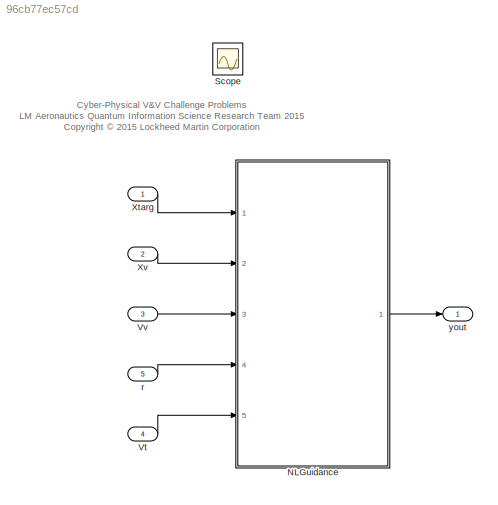
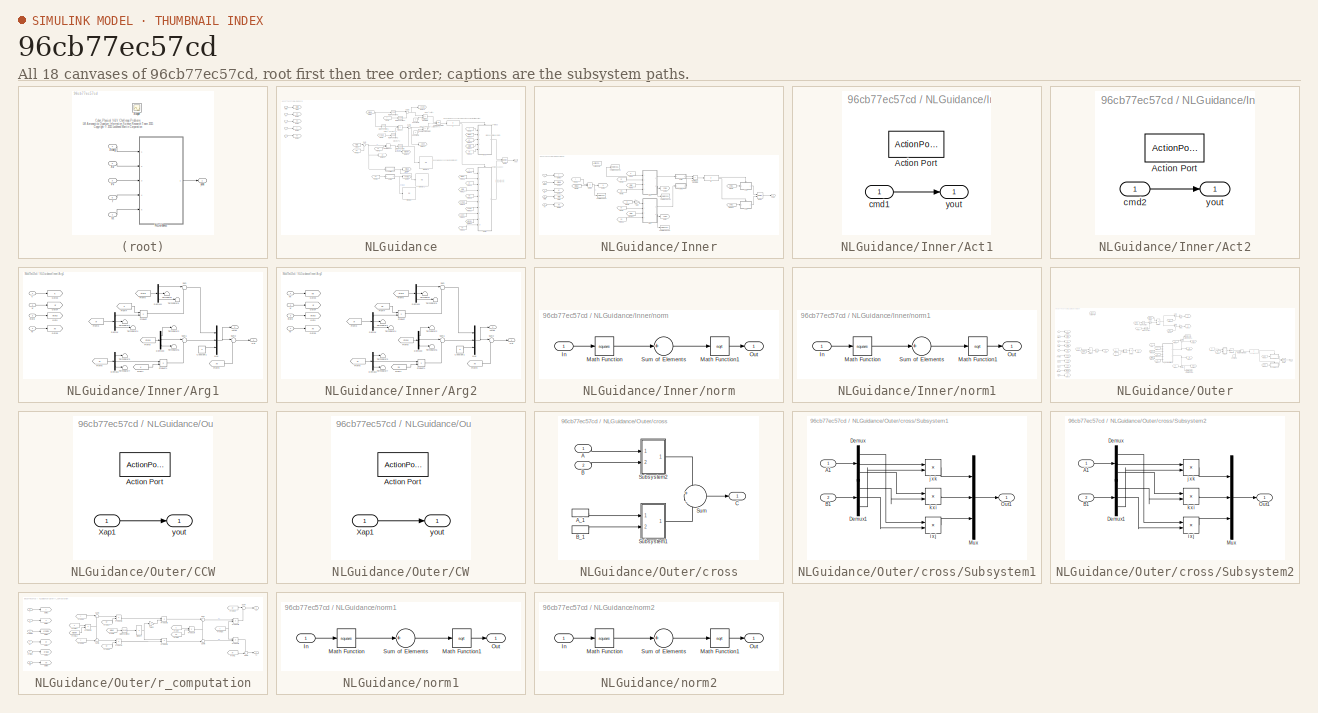
[diagram: thumbnail index - all 18 canvases of the model, root first then tree order]
MODEL slx_96cb77ec57cd
KIND model
CONFIG AbsTol = auto
CONFIG FixedStep = .02
CONFIG MaxStep = auto
CONFIG MinStep = auto
CONFIG RelTol = 1e-3
CONFIG SampleTimeConstraint = Unconstrained
CONFIG Solver = ode3
CONFIG SolverMode = Auto
CONFIG SolverName = ode3
CONFIG StartTime = 0.0
CONFIG StopTime = 10.0
WORKSPACE source: MAT-file member
WORKSPACE F = [0.0104799567177 0.0105274136759 0.00258730184958 0.00112291450915 0.0065543125439 0]
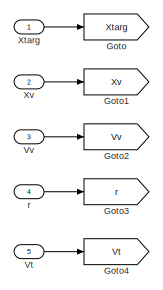
[diagram: NLGuidance - part 1/4, top left region]
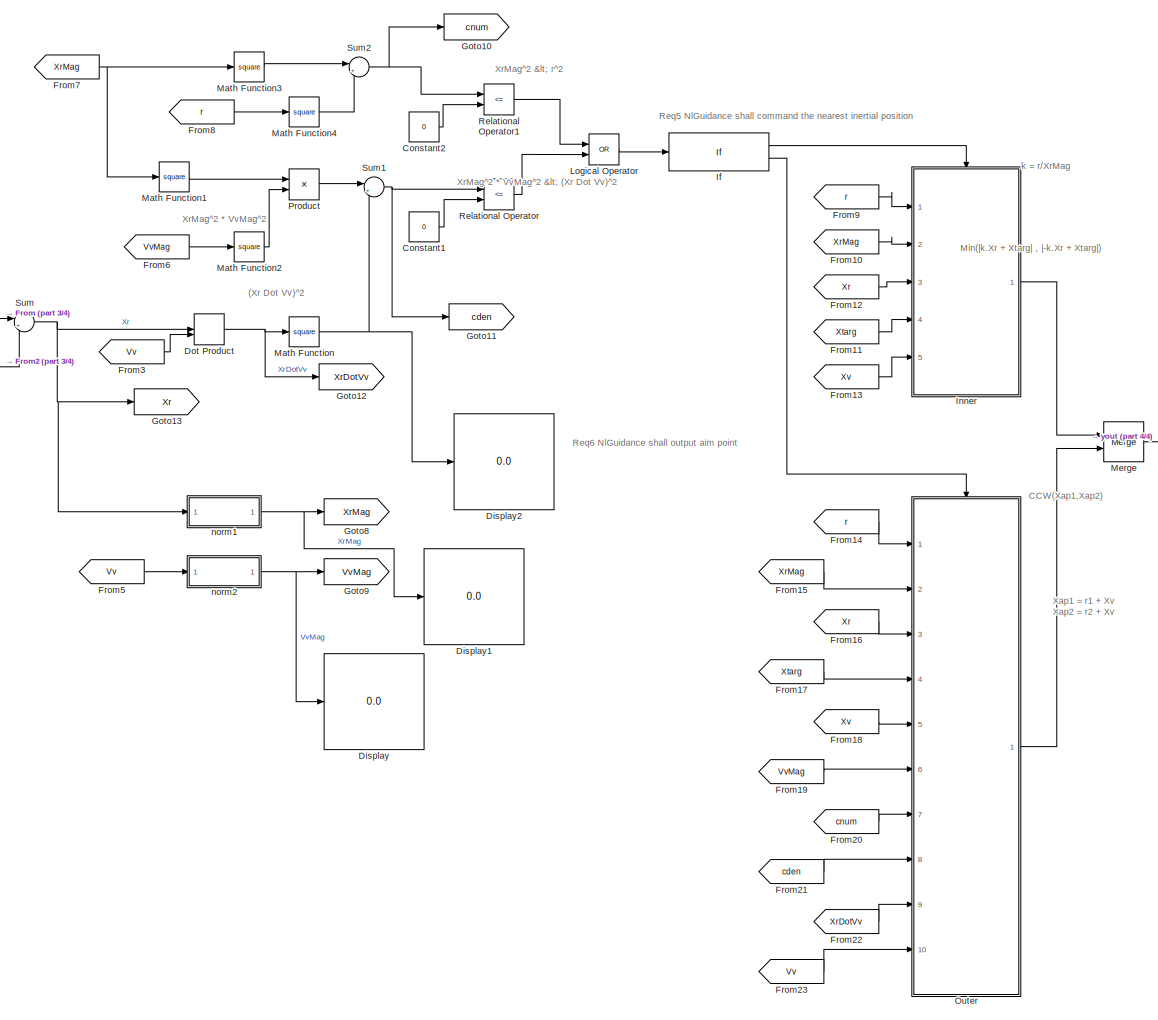
[diagram: NLGuidance - part 2/4, center side, full height]
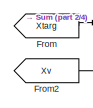
[diagram: NLGuidance - part 3/4, middle left region]
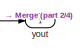
[diagram: NLGuidance - part 4/4, middle right region]
BLOCK [SubSystem] NLGuidance
  Ports = [5, 1]
  RequestExecContextInheritance = off
  Variant = off
BLOCK [Constant] NLGuidance/Constant1
  Value = 0
BLOCK [Constant] NLGuidance/Constant2
  Value = 0
BLOCK [Display] NLGuidance/Display
  Decimation = 1
  Ports = [1]
BLOCK [Display] NLGuidance/Display1
  Decimation = 1
  Ports = [1]
BLOCK [Display] NLGuidance/Display2
  Decimation = 1
  Ports = [1]
BLOCK [DotProduct] NLGuidance/Dot Product
  OutDataTypeStr = Inherit: Inherit via internal rule
BLOCK [From] NLGuidance/From
  GotoTag = Xtarg
BLOCK [From] NLGuidance/From10
  GotoTag = XrMag
BLOCK [From] NLGuidance/From11
  GotoTag = Xtarg
BLOCK [From] NLGuidance/From12
  GotoTag = Xr
BLOCK [From] NLGuidance/From13
  GotoTag = Xv
BLOCK [From] NLGuidance/From14
  GotoTag = r
BLOCK [From] NLGuidance/From15
  GotoTag = XrMag
BLOCK [From] NLGuidance/From16
  GotoTag = Xr
BLOCK [From] NLGuidance/From17
  GotoTag = Xtarg
BLOCK [From] NLGuidance/From18
  GotoTag = Xv
BLOCK [From] NLGuidance/From19
  GotoTag = VvMag
BLOCK [From] NLGuidance/From2
  GotoTag = Xv
BLOCK [From] NLGuidance/From20
  GotoTag = cnum
BLOCK [From] NLGuidance/From21
  GotoTag = cden
BLOCK [From] NLGuidance/From22
  GotoTag = XrDotVv
BLOCK [From] NLGuidance/From23
  GotoTag = Vv
BLOCK [From] NLGuidance/From3
  GotoTag = Vv
BLOCK [From] NLGuidance/From5
  GotoTag = Vv
BLOCK [From] NLGuidance/From6
  GotoTag = VvMag
BLOCK [From] NLGuidance/From7
  GotoTag = XrMag
BLOCK [From] NLGuidance/From8
  GotoTag = r
BLOCK [From] NLGuidance/From9
  GotoTag = r
BLOCK [Goto] NLGuidance/Goto
  GotoTag = Xtarg
BLOCK [Goto] NLGuidance/Goto1
  GotoTag = Xv
BLOCK [Goto] NLGuidance/Goto10
  GotoTag = cnum
BLOCK [Goto] NLGuidance/Goto11
  GotoTag = cden
BLOCK [Goto] NLGuidance/Goto12
  GotoTag = XrDotVv
BLOCK [Goto] NLGuidance/Goto13
  GotoTag = Xr
BLOCK [Goto] NLGuidance/Goto2
  GotoTag = Vv
BLOCK [Goto] NLGuidance/Goto3
  GotoTag = r
BLOCK [Goto] NLGuidance/Goto4
  GotoTag = Vt
BLOCK [Goto] NLGuidance/Goto8
  GotoTag = XrMag
BLOCK [Goto] NLGuidance/Goto9
  GotoTag = VvMag
BLOCK [If] NLGuidance/If
  IfExpression = u1
  Ports = [1, 2]
BLOCK [SubSystem] NLGuidance/Inner
  Ports = [5, 1, 0, 0, 0, 0, 0, 1]
  RequestExecContextInheritance = off
  Variant = off
BLOCK [SubSystem] NLGuidance/Inner/Act1
  Ports = [1, 1, 0, 0, 0, 0, 0, 1]
  RequestExecContextInheritance = off
  Variant = off
BLOCK [ActionPort] NLGuidance/Inner/Act1/Action Port
  ActionType = then
BLOCK [Inport] NLGuidance/Inner/Act1/cmd1
  IconDisplay = Port number
BLOCK [Outport] NLGuidance/Inner/Act1/yout
  IconDisplay = Port number
BLOCK [SubSystem] NLGuidance/Inner/Act2
  Ports = [1, 1, 0, 0, 0, 0, 0, 1]
  RequestExecContextInheritance = off
  Variant = off
BLOCK [ActionPort] NLGuidance/Inner/Act2/Action Port
  ActionType = else
BLOCK [Inport] NLGuidance/Inner/Act2/cmd2
  IconDisplay = Port number
BLOCK [Outport] NLGuidance/Inner/Act2/yout
  IconDisplay = Port number
BLOCK [ActionPort] NLGuidance/Inner/Action Port
  ActionType = then
BLOCK [SubSystem] NLGuidance/Inner/Arg1
  Ports = [4, 2]
  RequestExecContextInheritance = off
  Variant = off
BLOCK [Constant] NLGuidance/Inner/Arg1/Constant1
  Value = 0
BLOCK [Demux] NLGuidance/Inner/Arg1/Demux
  DisplayOption = bar
  Outputs = 3
  Ports = [1, 3]
BLOCK [Demux] NLGuidance/Inner/Arg1/Demux1
  DisplayOption = bar
  Outputs = 3
  Ports = [1, 3]
BLOCK [Demux] NLGuidance/Inner/Arg1/Demux2
  DisplayOption = bar
  Outputs = 3
  Ports = [1, 3]
BLOCK [Demux] NLGuidance/Inner/Arg1/Demux3
  DisplayOption = bar
  Outputs = 3
  Ports = [1, 3]
BLOCK [From] NLGuidance/Inner/Arg1/From3
  GotoTag = Xr
BLOCK [From] NLGuidance/Inner/Arg1/From4
  GotoTag = k
BLOCK [From] NLGuidance/Inner/Arg1/From5
  GotoTag = Xtarg
BLOCK [From] NLGuidance/Inner/Arg1/From6
  GotoTag = Xr
BLOCK [From] NLGuidance/Inner/Arg1/From7
  GotoTag = k
BLOCK [From] NLGuidance/Inner/Arg1/From8
  GotoTag = Xtarg
BLOCK [From] NLGuidance/Inner/Arg1/From9
  GotoTag = Xv
BLOCK [Goto] NLGuidance/Inner/Arg1/Goto
  GotoTag = Xtarg
BLOCK [Goto] NLGuidance/Inner/Arg1/Goto3
  GotoTag = k
BLOCK [Goto] NLGuidance/Inner/Arg1/Goto4
  GotoTag = Xr
BLOCK [Goto] NLGuidance/Inner/Arg1/Goto5
  GotoTag = Xv
BLOCK [Mux] NLGuidance/Inner/Arg1/Mux
  DisplayOption = bar
  Inputs = 3
  Ports = [3, 1]
BLOCK [Outport] NLGuidance/Inner/Arg1/Out
  IconDisplay = Port number
BLOCK [Product] NLGuidance/Inner/Arg1/Product
  InputSameDT = off
  OutDataTypeStr = Inherit: Inherit via internal rule
  Ports = [2, 1]
  SaturateOnIntegerOverflow = off
BLOCK [Product] NLGuidance/Inner/Arg1/Product1
  InputSameDT = off
  OutDataTypeStr = Inherit: Inherit via internal rule
  Ports = [2, 1]
  SaturateOnIntegerOverflow = off
BLOCK [Sum] NLGuidance/Inner/Arg1/Sum
  IconShape = round
  InputSameDT = off
  Inputs = |++
  OutDataTypeStr = Inherit: Inherit via internal rule
  Ports = [2, 1]
  SaturateOnIntegerOverflow = off
BLOCK [Sum] NLGuidance/Inner/Arg1/Sum1
  IconShape = round
  InputSameDT = off
  Inputs = |++
  OutDataTypeStr = Inherit: Inherit via internal rule
  Ports = [2, 1]
  SaturateOnIntegerOverflow = off
BLOCK [Sum] NLGuidance/Inner/Arg1/Sum2
  IconShape = round
  InputSameDT = off
  Inputs = |+-
  OutDataTypeStr = Inherit: Inherit via internal rule
  Ports = [2, 1]
  SaturateOnIntegerOverflow = off
BLOCK [Terminator] NLGuidance/Inner/Arg1/Terminator
BLOCK [Terminator] NLGuidance/Inner/Arg1/Terminator1
BLOCK [Terminator] NLGuidance/Inner/Arg1/Terminator2
BLOCK [Terminator] NLGuidance/Inner/Arg1/Terminator3
BLOCK [Terminator] NLGuidance/Inner/Arg1/Terminator4
BLOCK [Terminator] NLGuidance/Inner/Arg1/Terminator5
BLOCK [Terminator] NLGuidance/Inner/Arg1/Terminator6
BLOCK [Terminator] NLGuidance/Inner/Arg1/Terminator7
BLOCK [Inport] NLGuidance/Inner/Arg1/Xr
  IconDisplay = Port number
  Port = 2
BLOCK [Inport] NLGuidance/Inner/Arg1/Xtarg
  IconDisplay = Port number
  Port = 3
BLOCK [Inport] NLGuidance/Inner/Arg1/Xv
  IconDisplay = Port number
  Port = 4
BLOCK [Outport] NLGuidance/Inner/Arg1/cmd1
  IconDisplay = Port number
  Port = 2
BLOCK [Inport] NLGuidance/Inner/Arg1/k
  IconDisplay = Port number
BLOCK [SubSystem] NLGuidance/Inner/Arg2
  Ports = [4, 2]
  RequestExecContextInheritance = off
  Variant = off
BLOCK [Constant] NLGuidance/Inner/Arg2/Constant1
  Value = 0
BLOCK [Demux] NLGuidance/Inner/Arg2/Demux
  DisplayOption = bar
  Outputs = 3
  Ports = [1, 3]
BLOCK [Demux] NLGuidance/Inner/Arg2/Demux1
  DisplayOption = bar
  Outputs = 3
  Ports = [1, 3]
BLOCK [Demux] NLGuidance/Inner/Arg2/Demux2
  DisplayOption = bar
  Outputs = 3
  Ports = [1, 3]
BLOCK [Demux] NLGuidance/Inner/Arg2/Demux3
  DisplayOption = bar
  Outputs = 3
  Ports = [1, 3]
BLOCK [From] NLGuidance/Inner/Arg2/From3
  GotoTag = Xr
BLOCK [From] NLGuidance/Inner/Arg2/From4
  GotoTag = nk
BLOCK [From] NLGuidance/Inner/Arg2/From5
  GotoTag = Xtarg
BLOCK [From] NLGuidance/Inner/Arg2/From6
  GotoTag = Xr
BLOCK [From] NLGuidance/Inner/Arg2/From7
  GotoTag = nk
BLOCK [From] NLGuidance/Inner/Arg2/From8
  GotoTag = Xtarg
BLOCK [From] NLGuidance/Inner/Arg2/From9
  GotoTag = Xv
BLOCK [Goto] NLGuidance/Inner/Arg2/Goto
  GotoTag = Xtarg
BLOCK [Goto] NLGuidance/Inner/Arg2/Goto3
  GotoTag = nk
BLOCK [Goto] NLGuidance/Inner/Arg2/Goto4
  GotoTag = Xr
BLOCK [Goto] NLGuidance/Inner/Arg2/Goto5
  GotoTag = Xv
BLOCK [Mux] NLGuidance/Inner/Arg2/Mux
  DisplayOption = bar
  Inputs = 3
  Ports = [3, 1]
BLOCK [Outport] NLGuidance/Inner/Arg2/Out
  IconDisplay = Port number
BLOCK [Product] NLGuidance/Inner/Arg2/Product
  InputSameDT = off
  OutDataTypeStr = Inherit: Inherit via internal rule
  Ports = [2, 1]
  SaturateOnIntegerOverflow = off
BLOCK [Product] NLGuidance/Inner/Arg2/Product1
  InputSameDT = off
  OutDataTypeStr = Inherit: Inherit via internal rule
  Ports = [2, 1]
  SaturateOnIntegerOverflow = off
BLOCK [Sum] NLGuidance/Inner/Arg2/Sum
  IconShape = round
  InputSameDT = off
  Inputs = |++
  OutDataTypeStr = Inherit: Inherit via internal rule
  Ports = [2, 1]
  SaturateOnIntegerOverflow = off
BLOCK [Sum] NLGuidance/Inner/Arg2/Sum1
  IconShape = round
  InputSameDT = off
  Inputs = |++
  OutDataTypeStr = Inherit: Inherit via internal rule
  Ports = [2, 1]
  SaturateOnIntegerOverflow = off
BLOCK [Sum] NLGuidance/Inner/Arg2/Sum2
  IconShape = round
  InputSameDT = off
  Inputs = |+-
  OutDataTypeStr = Inherit: Inherit via internal rule
  Ports = [2, 1]
  SaturateOnIntegerOverflow = off
BLOCK [Terminator] NLGuidance/Inner/Arg2/Terminator
BLOCK [Terminator] NLGuidance/Inner/Arg2/Terminator1
BLOCK [Terminator] NLGuidance/Inner/Arg2/Terminator2
BLOCK [Terminator] NLGuidance/Inner/Arg2/Terminator3
BLOCK [Terminator] NLGuidance/Inner/Arg2/Terminator4
BLOCK [Terminator] NLGuidance/Inner/Arg2/Terminator5
BLOCK [Terminator] NLGuidance/Inner/Arg2/Terminator6
BLOCK [Terminator] NLGuidance/Inner/Arg2/Terminator7
BLOCK [Inport] NLGuidance/Inner/Arg2/Xr
  IconDisplay = Port number
  Port = 2
BLOCK [Inport] NLGuidance/Inner/Arg2/Xtarg
  IconDisplay = Port number
  Port = 3
BLOCK [Inport] NLGuidance/Inner/Arg2/Xv
  IconDisplay = Port number
  Port = 4
BLOCK [Outport] NLGuidance/Inner/Arg2/cmd2
  IconDisplay = Port number
  Port = 2
BLOCK [Inport] NLGuidance/Inner/Arg2/nk
  IconDisplay = Port number
BLOCK [Product] NLGuidance/Inner/Divide
  InputSameDT = off
  Inputs = */
  OutDataTypeStr = Inherit: Inherit via internal rule
  Ports = [2, 1]
  RndMeth = Floor
  SaturateOnIntegerOverflow = off
BLOCK [From] NLGuidance/Inner/From1
  GotoTag = r
BLOCK [From] NLGuidance/Inner/From10
  GotoTag = Xtarg
BLOCK [From] NLGuidance/Inner/From11
  GotoTag = Xv
BLOCK [From] NLGuidance/Inner/From12
  GotoTag = cmd2
BLOCK [From] NLGuidance/Inner/From2
  GotoTag = XrMag
BLOCK [From] NLGuidance/Inner/From3
  GotoTag = Xr
BLOCK [From] NLGuidance/Inner/From4
  GotoTag = k
BLOCK [From] NLGuidance/Inner/From5
  GotoTag = Xtarg
BLOCK [From] NLGuidance/Inner/From6
  GotoTag = Xv
BLOCK [From] NLGuidance/Inner/From7
  GotoTag = Xr
BLOCK [From] NLGuidance/Inner/From8
  GotoTag = k
BLOCK [From] NLGuidance/Inner/From9
  GotoTag = cmd1
BLOCK [Gain] NLGuidance/Inner/Gain
  Gain = -1
  OutDataTypeStr = Inherit: Inherit via internal rule
  ParamDataTypeStr = Inherit: Inherit via internal rule
  SaturateOnIntegerOverflow = off
BLOCK [Goto] NLGuidance/Inner/Goto
  GotoTag = Xtarg
BLOCK [Goto] NLGuidance/Inner/Goto1
  GotoTag = XrMag
BLOCK [Goto] NLGuidance/Inner/Goto2
  GotoTag = k
BLOCK [Goto] NLGuidance/Inner/Goto3
  GotoTag = r
BLOCK [Goto] NLGuidance/Inner/Goto4
  GotoTag = Xr
BLOCK [Goto] NLGuidance/Inner/Goto5
  GotoTag = Xv
BLOCK [Goto] NLGuidance/Inner/Goto6
  GotoTag = cmd1
BLOCK [Goto] NLGuidance/Inner/Goto7
  GotoTag = cmd2
BLOCK [If] NLGuidance/Inner/If
  IfExpression = u1
  Ports = [1, 2]
BLOCK [Merge] NLGuidance/Inner/Merge
  Ports = [2, 1]
BLOCK [RelationalOperator] NLGuidance/Inner/Relational Operator1
  InputSameDT = off
  Operator = <
  OutDataTypeStr = boolean
  Ports = [2, 1]
BLOCK [ToWorkspace] NLGuidance/Inner/To Workspace
  FixptAsFi = on
  MaxDataPoints = inf
  Ports = [1]
  SampleTime = -1
  Save2DSignal = 3-D array (concatenate along third dimension)
  SaveFormat = Timeseries
  VariableName = k
BLOCK [ToWorkspace] NLGuidance/Inner/To Workspace1
  FixptAsFi = on
  MaxDataPoints = inf
  Ports = [1]
  SampleTime = -1
  Save2DSignal = 3-D array (concatenate along third dimension)
  VariableName = cmd1
BLOCK [ToWorkspace] NLGuidance/Inner/To Workspace2
  FixptAsFi = on
  MaxDataPoints = inf
  Ports = [1]
  SampleTime = -1
  Save2DSignal = 3-D array (concatenate along third dimension)
  VariableName = cmd2
BLOCK [ToWorkspace] NLGuidance/Inner/To Workspace3
  FixptAsFi = on
  MaxDataPoints = inf
  Ports = [1]
  SampleTime = -1
  Save2DSignal = 3-D array (concatenate along third dimension)
  SaveFormat = Timeseries
  VariableName = Xr
BLOCK [Inport] NLGuidance/Inner/Xr
  IconDisplay = Port number
  Port = 3
BLOCK [Inport] NLGuidance/Inner/XrMag
  IconDisplay = Port number
  Port = 2
BLOCK [Inport] NLGuidance/Inner/Xtarg
  IconDisplay = Port number
  Port = 4
BLOCK [Inport] NLGuidance/Inner/Xv
  IconDisplay = Port number
  Port = 5
BLOCK [SubSystem] NLGuidance/Inner/norm
  Ports = [1, 1]
  RequestExecContextInheritance = off
  Variant = off
BLOCK [Inport] NLGuidance/Inner/norm/In
  IconDisplay = Port number
BLOCK [Math] NLGuidance/Inner/norm/Math Function
  Operator = square
  Ports = [1, 1]
BLOCK [Math] NLGuidance/Inner/norm/Math Function1
  Operator = sqrt
  Ports = [1, 1]
BLOCK [Outport] NLGuidance/Inner/norm/Out
  IconDisplay = Port number
BLOCK [Sum] NLGuidance/Inner/norm/Sum of Elements
  InputSameDT = off
  Inputs = +
  OutDataTypeStr = Inherit: Inherit via internal rule
  Ports = [1, 1]
  SaturateOnIntegerOverflow = off
BLOCK [SubSystem] NLGuidance/Inner/norm1
  Ports = [1, 1]
  RequestExecContextInheritance = off
  Variant = off
BLOCK [Inport] NLGuidance/Inner/norm1/In
  IconDisplay = Port number
BLOCK [Math] NLGuidance/Inner/norm1/Math Function
  Operator = square
  Ports = [1, 1]
BLOCK [Math] NLGuidance/Inner/norm1/Math Function1
  Operator = sqrt
  Ports = [1, 1]
BLOCK [Outport] NLGuidance/Inner/norm1/Out
  IconDisplay = Port number
BLOCK [Sum] NLGuidance/Inner/norm1/Sum of Elements
  InputSameDT = off
  Inputs = +
  OutDataTypeStr = Inherit: Inherit via internal rule
  Ports = [1, 1]
  SaturateOnIntegerOverflow = off
BLOCK [Inport] NLGuidance/Inner/r
  IconDisplay = Port number
BLOCK [Outport] NLGuidance/Inner/yout
  IconDisplay = Port number
BLOCK [Logic] NLGuidance/Logical Operator
  AllPortsSameDT = off
  Operator = OR
  OutDataTypeStr = boolean
  Ports = [2, 1]
BLOCK [Math] NLGuidance/Math Function
  Operator = square
  Ports = [1, 1]
BLOCK [Math] NLGuidance/Math Function1
  Operator = square
  Ports = [1, 1]
BLOCK [Math] NLGuidance/Math Function2
  Operator = square
  Ports = [1, 1]
BLOCK [Math] NLGuidance/Math Function3
  Operator = square
  Ports = [1, 1]
BLOCK [Math] NLGuidance/Math Function4
  Operator = square
  Ports = [1, 1]
BLOCK [Merge] NLGuidance/Merge
  Ports = [2, 1]
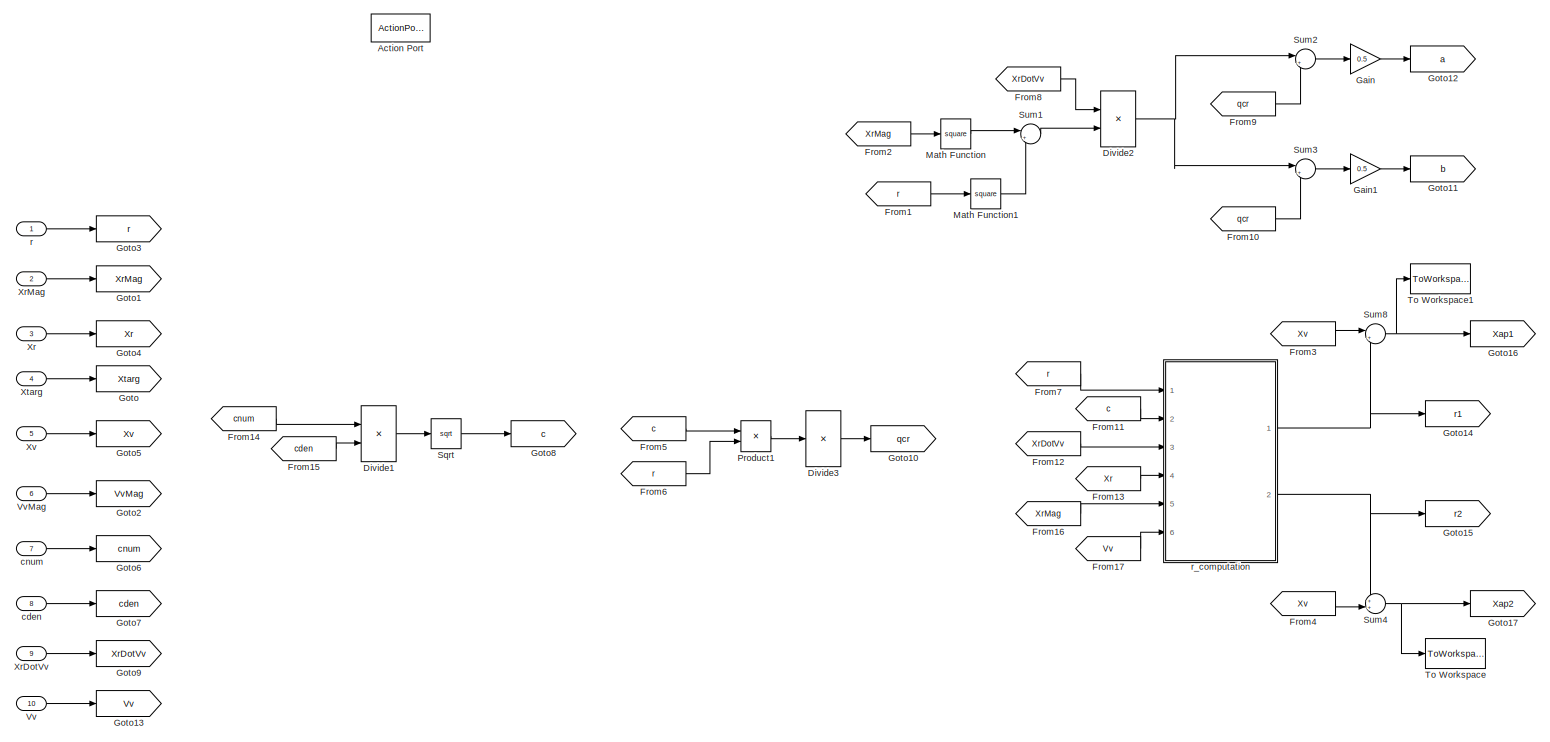
[diagram: NLGuidance/Outer - part 1/2, left side, full height]
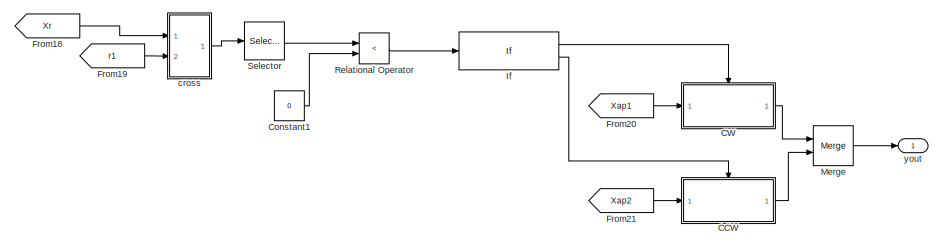
[diagram: NLGuidance/Outer - part 2/2, bottom right region]
BLOCK [SubSystem] NLGuidance/Outer
  Ports = [10, 1, 0, 0, 0, 0, 0, 1]
  RequestExecContextInheritance = off
  Variant = off
BLOCK [ActionPort] NLGuidance/Outer/Action Port
  ActionType = else
BLOCK [SubSystem] NLGuidance/Outer/CCW
  Ports = [1, 1, 0, 0, 0, 0, 0, 1]
  RequestExecContextInheritance = off
  Variant = off
BLOCK [ActionPort] NLGuidance/Outer/CCW/Action Port
  ActionType = else
BLOCK [Inport] NLGuidance/Outer/CCW/Xap1
  IconDisplay = Port number
BLOCK [Outport] NLGuidance/Outer/CCW/yout
  IconDisplay = Port number
BLOCK [SubSystem] NLGuidance/Outer/CW
  Ports = [1, 1, 0, 0, 0, 0, 0, 1]
  RequestExecContextInheritance = off
  Variant = off
BLOCK [ActionPort] NLGuidance/Outer/CW/Action Port
  ActionType = then
BLOCK [Inport] NLGuidance/Outer/CW/Xap1
  IconDisplay = Port number
BLOCK [Outport] NLGuidance/Outer/CW/yout
  IconDisplay = Port number
BLOCK [Constant] NLGuidance/Outer/Constant1
  Value = 0
BLOCK [Product] NLGuidance/Outer/Divide1
  InputSameDT = off
  Inputs = */
  OutDataTypeStr = Inherit: Inherit via internal rule
  Ports = [2, 1]
  RndMeth = Floor
  SaturateOnIntegerOverflow = off
BLOCK [Product] NLGuidance/Outer/Divide2
  InputSameDT = off
  Inputs = */
  OutDataTypeStr = Inherit: Inherit via internal rule
  Ports = [2, 1]
  RndMeth = Floor
  SaturateOnIntegerOverflow = off
BLOCK [Product] NLGuidance/Outer/Divide3
  InputSameDT = off
  Inputs = /
  OutDataTypeStr = Inherit: Inherit via internal rule
  Ports = [1, 1]
  RndMeth = Floor
  SaturateOnIntegerOverflow = off
BLOCK [From] NLGuidance/Outer/From1
  GotoTag = r
BLOCK [From] NLGuidance/Outer/From10
  GotoTag = qcr
BLOCK [From] NLGuidance/Outer/From11
  GotoTag = c
BLOCK [From] NLGuidance/Outer/From12
  GotoTag = XrDotVv
BLOCK [From] NLGuidance/Outer/From13
  GotoTag = Xr
BLOCK [From] NLGuidance/Outer/From14
  GotoTag = cnum
BLOCK [From] NLGuidance/Outer/From15
  GotoTag = cden
BLOCK [From] NLGuidance/Outer/From16
  GotoTag = XrMag
BLOCK [From] NLGuidance/Outer/From17
  GotoTag = Vv
BLOCK [From] NLGuidance/Outer/From18
  GotoTag = Xr
BLOCK [From] NLGuidance/Outer/From19
  GotoTag = r1
BLOCK [From] NLGuidance/Outer/From2
  GotoTag = XrMag
BLOCK [From] NLGuidance/Outer/From20
  GotoTag = Xap1
BLOCK [From] NLGuidance/Outer/From21
  GotoTag = Xap2
BLOCK [From] NLGuidance/Outer/From3
  GotoTag = Xv
BLOCK [From] NLGuidance/Outer/From4
  GotoTag = Xv
BLOCK [From] NLGuidance/Outer/From5
  GotoTag = c
BLOCK [From] NLGuidance/Outer/From6
  GotoTag = r
BLOCK [From] NLGuidance/Outer/From7
  GotoTag = r
BLOCK [From] NLGuidance/Outer/From8
  GotoTag = XrDotVv
BLOCK [From] NLGuidance/Outer/From9
  GotoTag = qcr
BLOCK [Gain] NLGuidance/Outer/Gain
  Gain = 0.5
  OutDataTypeStr = Inherit: Inherit via internal rule
  ParamDataTypeStr = Inherit: Inherit via internal rule
  SaturateOnIntegerOverflow = off
BLOCK [Gain] NLGuidance/Outer/Gain1
  Gain = 0.5
  OutDataTypeStr = Inherit: Inherit via internal rule
  ParamDataTypeStr = Inherit: Inherit via internal rule
  SaturateOnIntegerOverflow = off
BLOCK [Goto] NLGuidance/Outer/Goto
  GotoTag = Xtarg
BLOCK [Goto] NLGuidance/Outer/Goto1
  GotoTag = XrMag
BLOCK [Goto] NLGuidance/Outer/Goto10
  GotoTag = qcr
BLOCK [Goto] NLGuidance/Outer/Goto11
  GotoTag = b
BLOCK [Goto] NLGuidance/Outer/Goto12
  GotoTag = a
BLOCK [Goto] NLGuidance/Outer/Goto13
  GotoTag = Vv
BLOCK [Goto] NLGuidance/Outer/Goto14
  GotoTag = r1
BLOCK [Goto] NLGuidance/Outer/Goto15
  GotoTag = r2
BLOCK [Goto] NLGuidance/Outer/Goto16
  GotoTag = Xap1
BLOCK [Goto] NLGuidance/Outer/Goto17
  GotoTag = Xap2
BLOCK [Goto] NLGuidance/Outer/Goto2
  GotoTag = VvMag
BLOCK [Goto] NLGuidance/Outer/Goto3
  GotoTag = r
BLOCK [Goto] NLGuidance/Outer/Goto4
  GotoTag = Xr
BLOCK [Goto] NLGuidance/Outer/Goto5
  GotoTag = Xv
BLOCK [Goto] NLGuidance/Outer/Goto6
  GotoTag = cnum
BLOCK [Goto] NLGuidance/Outer/Goto7
  GotoTag = cden
BLOCK [Goto] NLGuidance/Outer/Goto8
  GotoTag = c
BLOCK [Goto] NLGuidance/Outer/Goto9
  GotoTag = XrDotVv
BLOCK [If] NLGuidance/Outer/If
  IfExpression = u1
  Ports = [1, 2]
BLOCK [Math] NLGuidance/Outer/Math Function
  Operator = square
  Ports = [1, 1]
BLOCK [Math] NLGuidance/Outer/Math Function1
  Operator = square
  Ports = [1, 1]
BLOCK [Merge] NLGuidance/Outer/Merge
  Ports = [2, 1]
BLOCK [Product] NLGuidance/Outer/Product1
  InputSameDT = off
  OutDataTypeStr = Inherit: Inherit via internal rule
  Ports = [2, 1]
  RndMeth = Floor
  SaturateOnIntegerOverflow = off
BLOCK [RelationalOperator] NLGuidance/Outer/Relational Operator
  InputSameDT = off
  Operator = <
  OutDataTypeStr = boolean
  Ports = [2, 1]
BLOCK [Selector] NLGuidance/Outer/Selector
  IndexOptions = Index vector (dialog)
  Indices = [3]
  InputPortWidth = 3
  OutputSizes = 1
  Ports = [1, 1]
BLOCK [Sqrt] NLGuidance/Outer/Sqrt
BLOCK [Sum] NLGuidance/Outer/Sum1
  IconShape = round
  InputSameDT = off
  Inputs = |+-
  OutDataTypeStr = Inherit: Inherit via internal rule
  Ports = [2, 1]
  SaturateOnIntegerOverflow = off
BLOCK [Sum] NLGuidance/Outer/Sum2
  IconShape = round
  InputSameDT = off
  Inputs = |++
  OutDataTypeStr = Inherit: Inherit via internal rule
  Ports = [2, 1]
  SaturateOnIntegerOverflow = off
BLOCK [Sum] NLGuidance/Outer/Sum3
  IconShape = round
  InputSameDT = off
  Inputs = |+-
  OutDataTypeStr = Inherit: Inherit via internal rule
  Ports = [2, 1]
  SaturateOnIntegerOverflow = off
BLOCK [Sum] NLGuidance/Outer/Sum4
  IconShape = round
  InputSameDT = off
  Inputs = ++|
  OutDataTypeStr = Inherit: Inherit via internal rule
  Ports = [2, 1]
  SaturateOnIntegerOverflow = off
BLOCK [Sum] NLGuidance/Outer/Sum8
  IconShape = round
  InputSameDT = off
  Inputs = |++
  OutDataTypeStr = Inherit: Inherit via internal rule
  Ports = [2, 1]
  SaturateOnIntegerOverflow = off
BLOCK [ToWorkspace] NLGuidance/Outer/To Workspace
  FixptAsFi = on
  MaxDataPoints = inf
  Ports = [1]
  SampleTime = -1
  Save2DSignal = 3-D array (concatenate along third dimension)
  VariableName = Xap2
BLOCK [ToWorkspace] NLGuidance/Outer/To Workspace1
  FixptAsFi = on
  MaxDataPoints = inf
  Ports = [1]
  SampleTime = -1
  Save2DSignal = 3-D array (concatenate along third dimension)
  VariableName = Xap1
BLOCK [Inport] NLGuidance/Outer/Vv
  IconDisplay = Port number
  Port = 10
BLOCK [Inport] NLGuidance/Outer/VvMag
  IconDisplay = Port number
  Port = 6
BLOCK [Inport] NLGuidance/Outer/Xr
  IconDisplay = Port number
  Port = 3
BLOCK [Inport] NLGuidance/Outer/XrDotVv
  IconDisplay = Port number
  Port = 9
BLOCK [Inport] NLGuidance/Outer/XrMag
  IconDisplay = Port number
  Port = 2
BLOCK [Inport] NLGuidance/Outer/Xtarg
  IconDisplay = Port number
  Port = 4
BLOCK [Inport] NLGuidance/Outer/Xv
  IconDisplay = Port number
  Port = 5
BLOCK [Inport] NLGuidance/Outer/cden
  IconDisplay = Port number
  Port = 8
BLOCK [Inport] NLGuidance/Outer/cnum
  IconDisplay = Port number
  Port = 7
BLOCK [SubSystem] NLGuidance/Outer/cross
  Ports = [2, 1]
  RequestExecContextInheritance = off
  Variant = off
BLOCK [Inport] NLGuidance/Outer/cross/A
  IconDisplay = Port number
BLOCK [InportShadow] NLGuidance/Outer/cross/A_1
  IconDisplay = Port number
BLOCK [Inport] NLGuidance/Outer/cross/B
  IconDisplay = Port number
  Port = 2
BLOCK [InportShadow] NLGuidance/Outer/cross/B_1
  IconDisplay = Port number
  Port = 2
BLOCK [Outport] NLGuidance/Outer/cross/C
  IconDisplay = Port number
BLOCK [SubSystem] NLGuidance/Outer/cross/Subsystem1
  Ports = [2, 1]
  RequestExecContextInheritance = off
  Variant = off
BLOCK [Inport] NLGuidance/Outer/cross/Subsystem1/A1
  IconDisplay = Port number
BLOCK [Inport] NLGuidance/Outer/cross/Subsystem1/B1
  IconDisplay = Port number
  Port = 2
BLOCK [Demux] NLGuidance/Outer/cross/Subsystem1/Demux
  DisplayOption = bar
  Outputs = 3
  Ports = [1, 3]
BLOCK [Demux] NLGuidance/Outer/cross/Subsystem1/Demux1
  DisplayOption = bar
  Outputs = 3
  Ports = [1, 3]
BLOCK [Mux] NLGuidance/Outer/cross/Subsystem1/Mux
  DisplayOption = bar
  Inputs = 3
  Ports = [3, 1]
BLOCK [Outport] NLGuidance/Outer/cross/Subsystem1/Out1
  IconDisplay = Port number
BLOCK [Product] NLGuidance/Outer/cross/Subsystem1/i x j
  Ports = [2, 1]
  RndMeth = Floor
BLOCK [Product] NLGuidance/Outer/cross/Subsystem1/j x k
  Ports = [2, 1]
  RndMeth = Floor
BLOCK [Product] NLGuidance/Outer/cross/Subsystem1/k x i
  Ports = [2, 1]
  RndMeth = Floor
BLOCK [SubSystem] NLGuidance/Outer/cross/Subsystem2
  Ports = [2, 1]
  RequestExecContextInheritance = off
  Variant = off
BLOCK [Inport] NLGuidance/Outer/cross/Subsystem2/A1
  IconDisplay = Port number
BLOCK [Inport] NLGuidance/Outer/cross/Subsystem2/B1
  IconDisplay = Port number
  Port = 2
BLOCK [Demux] NLGuidance/Outer/cross/Subsystem2/Demux
  DisplayOption = bar
  Outputs = 3
  Ports = [1, 3]
BLOCK [Demux] NLGuidance/Outer/cross/Subsystem2/Demux1
  DisplayOption = bar
  Outputs = 3
  Ports = [1, 3]
BLOCK [Mux] NLGuidance/Outer/cross/Subsystem2/Mux
  DisplayOption = bar
  Inputs = 3
  Ports = [3, 1]
BLOCK [Outport] NLGuidance/Outer/cross/Subsystem2/Out1
  IconDisplay = Port number
BLOCK [Product] NLGuidance/Outer/cross/Subsystem2/i x j
  Ports = [2, 1]
  RndMeth = Floor
BLOCK [Product] NLGuidance/Outer/cross/Subsystem2/j x k
  Ports = [2, 1]
  RndMeth = Floor
BLOCK [Product] NLGuidance/Outer/cross/Subsystem2/k x i
  Ports = [2, 1]
  RndMeth = Floor
BLOCK [Sum] NLGuidance/Outer/cross/Sum
  IconShape = round
  Inputs = +|-
  Ports = [2, 1]
BLOCK [Inport] NLGuidance/Outer/r
  IconDisplay = Port number
BLOCK [SubSystem] NLGuidance/Outer/r_computation
  Ports = [6, 2]
  RequestExecContextInheritance = off
  Variant = off
BLOCK [Product] NLGuidance/Outer/r_computation/Divide4
  InputSameDT = off
  Inputs = /
  OutDataTypeStr = Inherit: Inherit via internal rule
  Ports = [1, 1]
  RndMeth = Floor
  SaturateOnIntegerOverflow = off
BLOCK [From] NLGuidance/Outer/r_computation/From1
  GotoTag = Xr
BLOCK [From] NLGuidance/Outer/r_computation/From11
  GotoTag = c
BLOCK [From] NLGuidance/Outer/r_computation/From12
  GotoTag = XrDotVv
BLOCK [From] NLGuidance/Outer/r_computation/From13
  GotoTag = r
BLOCK [From] NLGuidance/Outer/r_computation/From16
  GotoTag = r
BLOCK [From] NLGuidance/Outer/r_computation/From17
  GotoTag = Xr
BLOCK [From] NLGuidance/Outer/r_computation/From18
  GotoTag = Xr
BLOCK [From] NLGuidance/Outer/r_computation/From19
  GotoTag = Xr
BLOCK [From] NLGuidance/Outer/r_computation/From20
  GotoTag = r
BLOCK [From] NLGuidance/Outer/r_computation/From3
  GotoTag = XrMag
BLOCK [From] NLGuidance/Outer/r_computation/From4
  GotoTag = Vv
BLOCK [From] NLGuidance/Outer/r_computation/From7
  GotoTag = c
BLOCK [Gain] NLGuidance/Outer/r_computation/Gain2
  Gain = -1
  OutDataTypeStr = Inherit: Inherit via internal rule
  ParamDataTypeStr = Inherit: Inherit via internal rule
  SaturateOnIntegerOverflow = off
BLOCK [Goto] NLGuidance/Outer/r_computation/Goto1
  GotoTag = c
BLOCK [Goto] NLGuidance/Outer/r_computation/Goto2
  GotoTag = XrDotVv
BLOCK [Goto] NLGuidance/Outer/r_computation/Goto3
  GotoTag = r
BLOCK [Goto] NLGuidance/Outer/r_computation/Goto4
  GotoTag = Xr
BLOCK [Goto] NLGuidance/Outer/r_computation/Goto5
  GotoTag = XrMag
BLOCK [Goto] NLGuidance/Outer/r_computation/Goto6
  GotoTag = Vv
BLOCK [Math] NLGuidance/Outer/r_computation/Math Function2
  Operator = square
  Ports = [1, 1]
BLOCK [Product] NLGuidance/Outer/r_computation/Product2
  InputSameDT = off
  OutDataTypeStr = Inherit: Inherit via internal rule
  Ports = [2, 1]
  RndMeth = Floor
  SaturateOnIntegerOverflow = off
BLOCK [Product] NLGuidance/Outer/r_computation/Product3
  InputSameDT = off
  OutDataTypeStr = Inherit: Inherit via internal rule
  Ports = [2, 1]
  RndMeth = Floor
  SaturateOnIntegerOverflow = off
BLOCK [Product] NLGuidance/Outer/r_computation/Product4
  InputSameDT = off
  OutDataTypeStr = Inherit: Inherit via internal rule
  Ports = [2, 1]
  RndMeth = Floor
  SaturateOnIntegerOverflow = off
BLOCK [Product] NLGuidance/Outer/r_computation/Product5
  InputSameDT = off
  OutDataTypeStr = Inherit: Inherit via internal rule
  Ports = [2, 1]
  RndMeth = Floor
  SaturateOnIntegerOverflow = off
BLOCK [Product] NLGuidance/Outer/r_computation/Product6
  InputSameDT = off
  OutDataTypeStr = Inherit: Inherit via internal rule
  Ports = [2, 1]
  RndMeth = Floor
  SaturateOnIntegerOverflow = off
BLOCK [Product] NLGuidance/Outer/r_computation/Product7
  InputSameDT = off
  OutDataTypeStr = Inherit: Inherit via internal rule
  Ports = [2, 1]
  RndMeth = Floor
  SaturateOnIntegerOverflow = off
BLOCK [Product] NLGuidance/Outer/r_computation/Product8
  InputSameDT = off
  OutDataTypeStr = Inherit: Inherit via internal rule
  Ports = [2, 1]
  RndMeth = Floor
  SaturateOnIntegerOverflow = off
BLOCK [Product] NLGuidance/Outer/r_computation/Product9
  InputSameDT = off
  OutDataTypeStr = Inherit: Inherit via internal rule
  Ports = [2, 1]
  RndMeth = Floor
  SaturateOnIntegerOverflow = off
BLOCK [Sum] NLGuidance/Outer/r_computation/Sum
  IconShape = round
  InputSameDT = off
  Inputs = |++
  OutDataTypeStr = Inherit: Inherit via internal rule
  Ports = [2, 1]
  SaturateOnIntegerOverflow = off
BLOCK [Sum] NLGuidance/Outer/r_computation/Sum1
  IconShape = round
  InputSameDT = off
  Inputs = ++|
  OutDataTypeStr = Inherit: Inherit via internal rule
  Ports = [2, 1]
  SaturateOnIntegerOverflow = off
BLOCK [Sum] NLGuidance/Outer/r_computation/Sum4
  IconShape = round
  InputSameDT = off
  Inputs = |++
  OutDataTypeStr = Inherit: Inherit via internal rule
  Ports = [2, 1]
  SaturateOnIntegerOverflow = off
BLOCK [Sum] NLGuidance/Outer/r_computation/Sum5
  IconShape = round
  InputSameDT = off
  Inputs = +-|
  OutDataTypeStr = Inherit: Inherit via internal rule
  Ports = [2, 1]
  SaturateOnIntegerOverflow = off
BLOCK [Sum] NLGuidance/Outer/r_computation/Sum6
  IconShape = round
  InputSameDT = off
  Inputs = -+|
  OutDataTypeStr = Inherit: Inherit via internal rule
  Ports = [2, 1]
  SaturateOnIntegerOverflow = off
BLOCK [Sum] NLGuidance/Outer/r_computation/Sum7
  IconShape = round
  InputSameDT = off
  Inputs = |++
  OutDataTypeStr = Inherit: Inherit via internal rule
  Ports = [2, 1]
  SaturateOnIntegerOverflow = off
BLOCK [Inport] NLGuidance/Outer/r_computation/Vv
  IconDisplay = Port number
  Port = 6
BLOCK [Inport] NLGuidance/Outer/r_computation/Xr
  IconDisplay = Port number
  Port = 4
BLOCK [Inport] NLGuidance/Outer/r_computation/XrDotVv
  IconDisplay = Port number
  Port = 3
BLOCK [Inport] NLGuidance/Outer/r_computation/XrMag
  IconDisplay = Port number
  Port = 5
BLOCK [Inport] NLGuidance/Outer/r_computation/c
  IconDisplay = Port number
  Port = 2
BLOCK [Inport] NLGuidance/Outer/r_computation/r
  IconDisplay = Port number
BLOCK [Outport] NLGuidance/Outer/r_computation/r1
  IconDisplay = Port number
BLOCK [Outport] NLGuidance/Outer/r_computation/r2
  IconDisplay = Port number
  Port = 2
BLOCK [Outport] NLGuidance/Outer/yout
  IconDisplay = Port number
BLOCK [Product] NLGuidance/Product
  InputSameDT = off
  OutDataTypeStr = Inherit: Inherit via internal rule
  Ports = [2, 1]
  SaturateOnIntegerOverflow = off
BLOCK [RelationalOperator] NLGuidance/Relational Operator
  InputSameDT = off
  Operator = <=
  OutDataTypeStr = boolean
  Ports = [2, 1]
BLOCK [RelationalOperator] NLGuidance/Relational Operator1
  InputSameDT = off
  Operator = <=
  OutDataTypeStr = boolean
  Ports = [2, 1]
BLOCK [Sum] NLGuidance/Sum
  IconShape = round
  InputSameDT = off
  Inputs = |+-
  OutDataTypeStr = Inherit: Inherit via internal rule
  Ports = [2, 1]
  SaturateOnIntegerOverflow = off
BLOCK [Sum] NLGuidance/Sum1
  IconShape = round
  InputSameDT = off
  Inputs = |+-
  OutDataTypeStr = Inherit: Inherit via internal rule
  Ports = [2, 1]
  SaturateOnIntegerOverflow = off
BLOCK [Sum] NLGuidance/Sum2
  IconShape = round
  InputSameDT = off
  Inputs = |+-
  OutDataTypeStr = Inherit: Inherit via internal rule
  Ports = [2, 1]
  SaturateOnIntegerOverflow = off
BLOCK [Inport] NLGuidance/Vt
  IconDisplay = Port number
  Port = 5
BLOCK [Inport] NLGuidance/Vv
  IconDisplay = Port number
  Port = 3
BLOCK [Inport] NLGuidance/Xtarg
  IconDisplay = Port number
BLOCK [Inport] NLGuidance/Xv
  IconDisplay = Port number
  Port = 2
BLOCK [SubSystem] NLGuidance/norm1
  Ports = [1, 1]
  RequestExecContextInheritance = off
  Variant = off
BLOCK [Inport] NLGuidance/norm1/In
  IconDisplay = Port number
BLOCK [Math] NLGuidance/norm1/Math Function
  Operator = square
  Ports = [1, 1]
BLOCK [Math] NLGuidance/norm1/Math Function1
  Operator = sqrt
  Ports = [1, 1]
BLOCK [Outport] NLGuidance/norm1/Out
  IconDisplay = Port number
BLOCK [Sum] NLGuidance/norm1/Sum of Elements
  InputSameDT = off
  Inputs = +
  OutDataTypeStr = Inherit: Inherit via internal rule
  Ports = [1, 1]
  SaturateOnIntegerOverflow = off
BLOCK [SubSystem] NLGuidance/norm2
  Ports = [1, 1]
  RequestExecContextInheritance = off
  Variant = off
BLOCK [Inport] NLGuidance/norm2/In
  IconDisplay = Port number
BLOCK [Math] NLGuidance/norm2/Math Function
  Operator = square
  Ports = [1, 1]
BLOCK [Math] NLGuidance/norm2/Math Function1
  Operator = sqrt
  Ports = [1, 1]
BLOCK [Outport] NLGuidance/norm2/Out
  IconDisplay = Port number
BLOCK [Sum] NLGuidance/norm2/Sum of Elements
  InputSameDT = off
  Inputs = +
  OutDataTypeStr = Inherit: Inherit via internal rule
  Ports = [1, 1]
  SaturateOnIntegerOverflow = off
BLOCK [Inport] NLGuidance/r
  IconDisplay = Port number
  Port = 4
BLOCK [Outport] NLGuidance/yout
  IconDisplay = Port number
BLOCK [Scope] Scope
  IOType = viewer
  Ports = []
  ScopeSpecificationString = Simulink.scopes.TimeScopeBlockCfg('CurrentConfiguration', extmgr.ConfigurationSet(extmgr.Configuration('Core','General UI',true),extmgr.Configuration('Core','Source UI',true),extmgr.Configuration('Sources','WiredSimulink',true),extmgr.Configuration('Visuals','Time Domain',true,'SerializedDisplays',{struct('MinYLimReal','-3469.06906','MaxYLimReal','385.45212','YLabelReal','','MinYLimMag','  0.00000...<+1411ch>
BLOCK [Inport] Vt
  IconDisplay = Port number
  OutDataTypeStr = double
  Port = 4
  PortDimensions = 3
BLOCK [Inport] Vv
  IconDisplay = Port number
  OutDataTypeStr = double
  Port = 3
  PortDimensions = 3
BLOCK [Inport] Xtarg
  IconDisplay = Port number
  OutDataTypeStr = double
  PortDimensions = 3
BLOCK [Inport] Xv
  IconDisplay = Port number
  OutDataTypeStr = double
  Port = 2
  PortDimensions = 3
BLOCK [Inport] r
  IconDisplay = Port number
  OutDataTypeStr = double
  Port = 5
BLOCK [Outport] yout
  IconDisplay = Port number
ANNOTATION (root): Cyber-Physical V&V Challenge Problems LM Aeronautics Quantum Information Science Research Team 2015 <copyright redacted>
ANNOTATION NLGuidance: Req5 NlGuidance shall command the nearest inertial position
ANNOTATION NLGuidance: Req6 NlGuidance shall output aim point
ANNOTATION NLGuidance: (Xr Dot Vv)^2
ANNOTATION NLGuidance: CCW(Xap1,Xap2)
ANNOTATION NLGuidance: Min(|k.Xr + Xtarg| , |-k.Xr + Xtarg|)
ANNOTATION NLGuidance: Xap1 = r1 + Xv Xap2 = r2 + Xv
ANNOTATION NLGuidance: XrMag^2 * VvMag^2 < (Xr Dot Vv)^2
ANNOTATION NLGuidance: XrMag^2 * VvMag^2
ANNOTATION NLGuidance: XrMag^2 < r^2
ANNOTATION NLGuidance: k = r/XrMag
LINE NLGuidance/Constant1:1 -> NLGuidance/Relational Operator:2
LINE NLGuidance/Constant2:1 -> NLGuidance/Relational Operator1:2
NET NLGuidance/Dot Product:1 -> NLGuidance/Goto12:1, NLGuidance/Math Function:1
LINE NLGuidance/From10:1 -> NLGuidance/Inner:2
LINE NLGuidance/From11:1 -> NLGuidance/Inner:4
LINE NLGuidance/From12:1 -> NLGuidance/Inner:3
LINE NLGuidance/From13:1 -> NLGuidance/Inner:5
LINE NLGuidance/From14:1 -> NLGuidance/Outer:1
LINE NLGuidance/From15:1 -> NLGuidance/Outer:2
LINE NLGuidance/From16:1 -> NLGuidance/Outer:3
LINE NLGuidance/From17:1 -> NLGuidance/Outer:4
LINE NLGuidance/From18:1 -> NLGuidance/Outer:5
LINE NLGuidance/From19:1 -> NLGuidance/Outer:6
LINE NLGuidance/From20:1 -> NLGuidance/Outer:7
LINE NLGuidance/From21:1 -> NLGuidance/Outer:8
LINE NLGuidance/From22:1 -> NLGuidance/Outer:9
LINE NLGuidance/From23:1 -> NLGuidance/Outer:10
LINE NLGuidance/From2:1 -> NLGuidance/Sum:2
LINE NLGuidance/From3:1 -> NLGuidance/Dot Product:2
LINE NLGuidance/From5:1 -> NLGuidance/norm2:1
LINE NLGuidance/From6:1 -> NLGuidance/Math Function2:1
NET NLGuidance/From7:1 -> NLGuidance/Math Function1:1, NLGuidance/Math Function3:1
LINE NLGuidance/From8:1 -> NLGuidance/Math Function4:1
LINE NLGuidance/From9:1 -> NLGuidance/Inner:1
LINE NLGuidance/From:1 -> NLGuidance/Sum:1
LINE NLGuidance/If:1 -> NLGuidance/Inner:ifaction
LINE NLGuidance/If:2 -> NLGuidance/Outer:ifaction
LINE NLGuidance/Inner/Act1/cmd1:1 -> NLGuidance/Inner/Act1/yout:1
LINE NLGuidance/Inner/Act1:1 -> NLGuidance/Inner/Merge:1
LINE NLGuidance/Inner/Act2/cmd2:1 -> NLGuidance/Inner/Act2/yout:1
LINE NLGuidance/Inner/Act2:1 -> NLGuidance/Inner/Merge:2
LINE NLGuidance/Inner/Arg1/Constant1:1 -> NLGuidance/Inner/Arg1/Mux:3
LINE NLGuidance/Inner/Arg1/Demux1:1 -> NLGuidance/Inner/Arg1/Sum:1
LINE NLGuidance/Inner/Arg1/Demux1:2 -> NLGuidance/Inner/Arg1/Terminator:1
LINE NLGuidance/Inner/Arg1/Demux1:3 -> NLGuidance/Inner/Arg1/Terminator5:1
LINE NLGuidance/Inner/Arg1/Demux2:1 -> NLGuidance/Inner/Arg1/Terminator3:1
LINE NLGuidance/Inner/Arg1/Demux2:2 -> NLGuidance/Inner/Arg1/Product1:1
LINE NLGuidance/Inner/Arg1/Demux2:3 -> NLGuidance/Inner/Arg1/Terminator7:1
LINE NLGuidance/Inner/Arg1/Demux3:1 -> NLGuidance/Inner/Arg1/Terminator2:1
LINE NLGuidance/Inner/Arg1/Demux3:2 -> NLGuidance/Inner/Arg1/Sum1:1
LINE NLGuidance/Inner/Arg1/Demux3:3 -> NLGuidance/Inner/Arg1/Terminator6:1
LINE NLGuidance/Inner/Arg1/Demux:1 -> NLGuidance/Inner/Arg1/Product:2
LINE NLGuidance/Inner/Arg1/Demux:2 -> NLGuidance/Inner/Arg1/Terminator1:1
LINE NLGuidance/Inner/Arg1/Demux:3 -> NLGuidance/Inner/Arg1/Terminator4:1
LINE NLGuidance/Inner/Arg1/From3:1 -> NLGuidance/Inner/Arg1/Demux:1
LINE NLGuidance/Inner/Arg1/From4:1 -> NLGuidance/Inner/Arg1/Product:1
LINE NLGuidance/Inner/Arg1/From5:1 -> NLGuidance/Inner/Arg1/Demux1:1
LINE NLGuidance/Inner/Arg1/From6:1 -> NLGuidance/Inner/Arg1/Demux2:1
LINE NLGuidance/Inner/Arg1/From7:1 -> NLGuidance/Inner/Arg1/Product1:2
LINE NLGuidance/Inner/Arg1/From8:1 -> NLGuidance/Inner/Arg1/Demux3:1
LINE NLGuidance/Inner/Arg1/From9:1 -> NLGuidance/Inner/Arg1/Sum2:2
NET NLGuidance/Inner/Arg1/Mux:1 -> NLGuidance/Inner/Arg1/Sum2:1, NLGuidance/Inner/Arg1/cmd1:1
LINE NLGuidance/Inner/Arg1/Product1:1 -> NLGuidance/Inner/Arg1/Sum1:2
LINE NLGuidance/Inner/Arg1/Product:1 -> NLGuidance/Inner/Arg1/Sum:2
LINE NLGuidance/Inner/Arg1/Sum1:1 -> NLGuidance/Inner/Arg1/Mux:2
LINE NLGuidance/Inner/Arg1/Sum2:1 -> NLGuidance/Inner/Arg1/Out:1
LINE NLGuidance/Inner/Arg1/Sum:1 -> NLGuidance/Inner/Arg1/Mux:1
LINE NLGuidance/Inner/Arg1/Xr:1 -> NLGuidance/Inner/Arg1/Goto4:1
LINE NLGuidance/Inner/Arg1/Xtarg:1 -> NLGuidance/Inner/Arg1/Goto:1
LINE NLGuidance/Inner/Arg1/Xv:1 -> NLGuidance/Inner/Arg1/Goto5:1
LINE NLGuidance/Inner/Arg1/k:1 -> NLGuidance/Inner/Arg1/Goto3:1
LINE NLGuidance/Inner/Arg1:1 -> NLGuidance/Inner/norm:1
NET NLGuidance/Inner/Arg1:2 -> NLGuidance/Inner/Goto6:1, NLGuidance/Inner/To Workspace1:1
LINE NLGuidance/Inner/Arg2/Constant1:1 -> NLGuidance/Inner/Arg2/Mux:3
LINE NLGuidance/Inner/Arg2/Demux1:1 -> NLGuidance/Inner/Arg2/Sum:1
LINE NLGuidance/Inner/Arg2/Demux1:2 -> NLGuidance/Inner/Arg2/Terminator:1
LINE NLGuidance/Inner/Arg2/Demux1:3 -> NLGuidance/Inner/Arg2/Terminator5:1
LINE NLGuidance/Inner/Arg2/Demux2:1 -> NLGuidance/Inner/Arg2/Terminator3:1
LINE NLGuidance/Inner/Arg2/Demux2:2 -> NLGuidance/Inner/Arg2/Product1:1
LINE NLGuidance/Inner/Arg2/Demux2:3 -> NLGuidance/Inner/Arg2/Terminator7:1
LINE NLGuidance/Inner/Arg2/Demux3:1 -> NLGuidance/Inner/Arg2/Terminator2:1
LINE NLGuidance/Inner/Arg2/Demux3:2 -> NLGuidance/Inner/Arg2/Sum1:1
LINE NLGuidance/Inner/Arg2/Demux3:3 -> NLGuidance/Inner/Arg2/Terminator6:1
LINE NLGuidance/Inner/Arg2/Demux:1 -> NLGuidance/Inner/Arg2/Product:2
LINE NLGuidance/Inner/Arg2/Demux:2 -> NLGuidance/Inner/Arg2/Terminator1:1
LINE NLGuidance/Inner/Arg2/Demux:3 -> NLGuidance/Inner/Arg2/Terminator4:1
LINE NLGuidance/Inner/Arg2/From3:1 -> NLGuidance/Inner/Arg2/Demux:1
LINE NLGuidance/Inner/Arg2/From4:1 -> NLGuidance/Inner/Arg2/Product:1
LINE NLGuidance/Inner/Arg2/From5:1 -> NLGuidance/Inner/Arg2/Demux1:1
LINE NLGuidance/Inner/Arg2/From6:1 -> NLGuidance/Inner/Arg2/Demux2:1
LINE NLGuidance/Inner/Arg2/From7:1 -> NLGuidance/Inner/Arg2/Product1:2
LINE NLGuidance/Inner/Arg2/From8:1 -> NLGuidance/Inner/Arg2/Demux3:1
LINE NLGuidance/Inner/Arg2/From9:1 -> NLGuidance/Inner/Arg2/Sum2:2
NET NLGuidance/Inner/Arg2/Mux:1 -> NLGuidance/Inner/Arg2/Sum2:1, NLGuidance/Inner/Arg2/cmd2:1
LINE NLGuidance/Inner/Arg2/Product1:1 -> NLGuidance/Inner/Arg2/Sum1:2
LINE NLGuidance/Inner/Arg2/Product:1 -> NLGuidance/Inner/Arg2/Sum:2
LINE NLGuidance/Inner/Arg2/Sum1:1 -> NLGuidance/Inner/Arg2/Mux:2
LINE NLGuidance/Inner/Arg2/Sum2:1 -> NLGuidance/Inner/Arg2/Out:1
LINE NLGuidance/Inner/Arg2/Sum:1 -> NLGuidance/Inner/Arg2/Mux:1
LINE NLGuidance/Inner/Arg2/Xr:1 -> NLGuidance/Inner/Arg2/Goto4:1
LINE NLGuidance/Inner/Arg2/Xtarg:1 -> NLGuidance/Inner/Arg2/Goto:1
LINE NLGuidance/Inner/Arg2/Xv:1 -> NLGuidance/Inner/Arg2/Goto5:1
LINE NLGuidance/Inner/Arg2/nk:1 -> NLGuidance/Inner/Arg2/Goto3:1
LINE NLGuidance/Inner/Arg2:1 -> NLGuidance/Inner/norm1:1
NET NLGuidance/Inner/Arg2:2 -> NLGuidance/Inner/Goto7:1, NLGuidance/Inner/To Workspace2:1
NET NLGuidance/Inner/Divide:1 -> NLGuidance/Inner/Goto2:1, NLGuidance/Inner/To Workspace:1
LINE NLGuidance/Inner/From10:1 -> NLGuidance/Inner/Arg2:3
LINE NLGuidance/Inner/From11:1 -> NLGuidance/Inner/Arg2:4
LINE NLGuidance/Inner/From12:1 -> NLGuidance/Inner/Act2:1
LINE NLGuidance/Inner/From1:1 -> NLGuidance/Inner/Divide:1
LINE NLGuidance/Inner/From2:1 -> NLGuidance/Inner/Divide:2
NET NLGuidance/Inner/From3:1 -> NLGuidance/Inner/Arg1:2, NLGuidance/Inner/To Workspace3:1
LINE NLGuidance/Inner/From4:1 -> NLGuidance/Inner/Arg1:1
LINE NLGuidance/Inner/From5:1 -> NLGuidance/Inner/Arg1:3
LINE NLGuidance/Inner/From6:1 -> NLGuidance/Inner/Arg1:4
LINE NLGuidance/Inner/From7:1 -> NLGuidance/Inner/Arg2:2
LINE NLGuidance/Inner/From8:1 -> NLGuidance/Inner/Gain:1
LINE NLGuidance/Inner/From9:1 -> NLGuidance/Inner/Act1:1
LINE NLGuidance/Inner/Gain:1 -> NLGuidance/Inner/Arg2:1
LINE NLGuidance/Inner/If:1 -> NLGuidance/Inner/Act1:ifaction
LINE NLGuidance/Inner/If:2 -> NLGuidance/Inner/Act2:ifaction
LINE NLGuidance/Inner/Merge:1 -> NLGuidance/Inner/yout:1
LINE NLGuidance/Inner/Relational Operator1:1 -> NLGuidance/Inner/If:1
LINE NLGuidance/Inner/Xr:1 -> NLGuidance/Inner/Goto4:1
LINE NLGuidance/Inner/XrMag:1 -> NLGuidance/Inner/Goto1:1
LINE NLGuidance/Inner/Xtarg:1 -> NLGuidance/Inner/Goto:1
LINE NLGuidance/Inner/Xv:1 -> NLGuidance/Inner/Goto5:1
LINE NLGuidance/Inner/norm/In:1 -> NLGuidance/Inner/norm/Math Function:1
LINE NLGuidance/Inner/norm/Math Function1:1 -> NLGuidance/Inner/norm/Out:1
LINE NLGuidance/Inner/norm/Math Function:1 -> NLGuidance/Inner/norm/Sum of Elements:1
LINE NLGuidance/Inner/norm/Sum of Elements:1 -> NLGuidance/Inner/norm/Math Function1:1
LINE NLGuidance/Inner/norm1/In:1 -> NLGuidance/Inner/norm1/Math Function:1
LINE NLGuidance/Inner/norm1/Math Function1:1 -> NLGuidance/Inner/norm1/Out:1
LINE NLGuidance/Inner/norm1/Math Function:1 -> NLGuidance/Inner/norm1/Sum of Elements:1
LINE NLGuidance/Inner/norm1/Sum of Elements:1 -> NLGuidance/Inner/norm1/Math Function1:1
LINE NLGuidance/Inner/norm1:1 -> NLGuidance/Inner/Relational Operator1:2
LINE NLGuidance/Inner/norm:1 -> NLGuidance/Inner/Relational Operator1:1
LINE NLGuidance/Inner/r:1 -> NLGuidance/Inner/Goto3:1
LINE NLGuidance/Inner:1 -> NLGuidance/Merge:1
LINE NLGuidance/Logical Operator:1 -> NLGuidance/If:1
LINE NLGuidance/Math Function1:1 -> NLGuidance/Product:1
LINE NLGuidance/Math Function2:1 -> NLGuidance/Product:2
LINE NLGuidance/Math Function3:1 -> NLGuidance/Sum2:1
LINE NLGuidance/Math Function4:1 -> NLGuidance/Sum2:2
NET NLGuidance/Math Function:1 -> NLGuidance/Display2:1, NLGuidance/Sum1:2
LINE NLGuidance/Merge:1 -> NLGuidance/yout:1
LINE NLGuidance/Outer/CCW/Xap1:1 -> NLGuidance/Outer/CCW/yout:1
LINE NLGuidance/Outer/CCW:1 -> NLGuidance/Outer/Merge:2
LINE NLGuidance/Outer/CW/Xap1:1 -> NLGuidance/Outer/CW/yout:1
LINE NLGuidance/Outer/CW:1 -> NLGuidance/Outer/Merge:1
LINE NLGuidance/Outer/Constant1:1 -> NLGuidance/Outer/Relational Operator:2
LINE NLGuidance/Outer/Divide1:1 -> NLGuidance/Outer/Sqrt:1
NET NLGuidance/Outer/Divide2:1 -> NLGuidance/Outer/Sum2:1, NLGuidance/Outer/Sum3:1
LINE NLGuidance/Outer/Divide3:1 -> NLGuidance/Outer/Goto10:1
LINE NLGuidance/Outer/From10:1 -> NLGuidance/Outer/Sum3:2
LINE NLGuidance/Outer/From11:1 -> NLGuidance/Outer/r_computation:2
LINE NLGuidance/Outer/From12:1 -> NLGuidance/Outer/r_computation:3
LINE NLGuidance/Outer/From13:1 -> NLGuidance/Outer/r_computation:4
LINE NLGuidance/Outer/From14:1 -> NLGuidance/Outer/Divide1:1
LINE NLGuidance/Outer/From15:1 -> NLGuidance/Outer/Divide1:2
LINE NLGuidance/Outer/From16:1 -> NLGuidance/Outer/r_computation:5
LINE NLGuidance/Outer/From17:1 -> NLGuidance/Outer/r_computation:6
LINE NLGuidance/Outer/From18:1 -> NLGuidance/Outer/cross:1
LINE NLGuidance/Outer/From19:1 -> NLGuidance/Outer/cross:2
LINE NLGuidance/Outer/From1:1 -> NLGuidance/Outer/Math Function1:1
LINE NLGuidance/Outer/From20:1 -> NLGuidance/Outer/CW:1
LINE NLGuidance/Outer/From21:1 -> NLGuidance/Outer/CCW:1
LINE NLGuidance/Outer/From2:1 -> NLGuidance/Outer/Math Function:1
LINE NLGuidance/Outer/From3:1 -> NLGuidance/Outer/Sum8:1
LINE NLGuidance/Outer/From4:1 -> NLGuidance/Outer/Sum4:2
LINE NLGuidance/Outer/From5:1 -> NLGuidance/Outer/Product1:1
LINE NLGuidance/Outer/From6:1 -> NLGuidance/Outer/Product1:2
LINE NLGuidance/Outer/From7:1 -> NLGuidance/Outer/r_computation:1
LINE NLGuidance/Outer/From8:1 -> NLGuidance/Outer/Divide2:1
LINE NLGuidance/Outer/From9:1 -> NLGuidance/Outer/Sum2:2
LINE NLGuidance/Outer/Gain1:1 -> NLGuidance/Outer/Goto11:1
LINE NLGuidance/Outer/Gain:1 -> NLGuidance/Outer/Goto12:1
LINE NLGuidance/Outer/If:1 -> NLGuidance/Outer/CW:ifaction
LINE NLGuidance/Outer/If:2 -> NLGuidance/Outer/CCW:ifaction
LINE NLGuidance/Outer/Math Function1:1 -> NLGuidance/Outer/Sum1:2
LINE NLGuidance/Outer/Math Function:1 -> NLGuidance/Outer/Sum1:1
LINE NLGuidance/Outer/Merge:1 -> NLGuidance/Outer/yout:1
LINE NLGuidance/Outer/Product1:1 -> NLGuidance/Outer/Divide3:1
LINE NLGuidance/Outer/Relational Operator:1 -> NLGuidance/Outer/If:1
LINE NLGuidance/Outer/Selector:1 -> NLGuidance/Outer/Relational Operator:1
LINE NLGuidance/Outer/Sqrt:1 -> NLGuidance/Outer/Goto8:1
LINE NLGuidance/Outer/Sum1:1 -> NLGuidance/Outer/Divide2:2
LINE NLGuidance/Outer/Sum2:1 -> NLGuidance/Outer/Gain:1
LINE NLGuidance/Outer/Sum3:1 -> NLGuidance/Outer/Gain1:1
NET NLGuidance/Outer/Sum4:1 -> NLGuidance/Outer/Goto17:1, NLGuidance/Outer/To Workspace:1
NET NLGuidance/Outer/Sum8:1 -> NLGuidance/Outer/Goto16:1, NLGuidance/Outer/To Workspace1:1
LINE NLGuidance/Outer/Vv:1 -> NLGuidance/Outer/Goto13:1
LINE NLGuidance/Outer/VvMag:1 -> NLGuidance/Outer/Goto2:1
LINE NLGuidance/Outer/Xr:1 -> NLGuidance/Outer/Goto4:1
LINE NLGuidance/Outer/XrDotVv:1 -> NLGuidance/Outer/Goto9:1
LINE NLGuidance/Outer/XrMag:1 -> NLGuidance/Outer/Goto1:1
LINE NLGuidance/Outer/Xtarg:1 -> NLGuidance/Outer/Goto:1
LINE NLGuidance/Outer/Xv:1 -> NLGuidance/Outer/Goto5:1
LINE NLGuidance/Outer/cden:1 -> NLGuidance/Outer/Goto7:1
LINE NLGuidance/Outer/cnum:1 -> NLGuidance/Outer/Goto6:1
LINE NLGuidance/Outer/cross/A:1 -> NLGuidance/Outer/cross/Subsystem2:1
LINE NLGuidance/Outer/cross/A_1:1 -> NLGuidance/Outer/cross/Subsystem1:1
LINE NLGuidance/Outer/cross/B:1 -> NLGuidance/Outer/cross/Subsystem2:2
LINE NLGuidance/Outer/cross/B_1:1 -> NLGuidance/Outer/cross/Subsystem1:2
LINE NLGuidance/Outer/cross/Subsystem1/A1:1 -> NLGuidance/Outer/cross/Subsystem1/Demux:1
LINE NLGuidance/Outer/cross/Subsystem1/B1:1 -> NLGuidance/Outer/cross/Subsystem1/Demux1:1
LINE NLGuidance/Outer/cross/Subsystem1/Demux1:1 -> NLGuidance/Outer/cross/Subsystem1/k x i:2
LINE NLGuidance/Outer/cross/Subsystem1/Demux1:2 -> NLGuidance/Outer/cross/Subsystem1/i x j:2
LINE NLGuidance/Outer/cross/Subsystem1/Demux1:3 -> NLGuidance/Outer/cross/Subsystem1/j x k:2
LINE NLGuidance/Outer/cross/Subsystem1/Demux:1 -> NLGuidance/Outer/cross/Subsystem1/i x j:1
LINE NLGuidance/Outer/cross/Subsystem1/Demux:2 -> NLGuidance/Outer/cross/Subsystem1/j x k:1
LINE NLGuidance/Outer/cross/Subsystem1/Demux:3 -> NLGuidance/Outer/cross/Subsystem1/k x i:1
LINE NLGuidance/Outer/cross/Subsystem1/Mux:1 -> NLGuidance/Outer/cross/Subsystem1/Out1:1
LINE NLGuidance/Outer/cross/Subsystem1/i x j:1 -> NLGuidance/Outer/cross/Subsystem1/Mux:3
LINE NLGuidance/Outer/cross/Subsystem1/j x k:1 -> NLGuidance/Outer/cross/Subsystem1/Mux:1
LINE NLGuidance/Outer/cross/Subsystem1/k x i:1 -> NLGuidance/Outer/cross/Subsystem1/Mux:2
LINE NLGuidance/Outer/cross/Subsystem1:1 -> NLGuidance/Outer/cross/Sum:2
LINE NLGuidance/Outer/cross/Subsystem2/A1:1 -> NLGuidance/Outer/cross/Subsystem2/Demux:1
LINE NLGuidance/Outer/cross/Subsystem2/B1:1 -> NLGuidance/Outer/cross/Subsystem2/Demux1:1
LINE NLGuidance/Outer/cross/Subsystem2/Demux1:1 -> NLGuidance/Outer/cross/Subsystem2/k x i:2
LINE NLGuidance/Outer/cross/Subsystem2/Demux1:2 -> NLGuidance/Outer/cross/Subsystem2/i x j:2
LINE NLGuidance/Outer/cross/Subsystem2/Demux1:3 -> NLGuidance/Outer/cross/Subsystem2/j x k:2
LINE NLGuidance/Outer/cross/Subsystem2/Demux:1 -> NLGuidance/Outer/cross/Subsystem2/i x j:1
LINE NLGuidance/Outer/cross/Subsystem2/Demux:2 -> NLGuidance/Outer/cross/Subsystem2/j x k:1
LINE NLGuidance/Outer/cross/Subsystem2/Demux:3 -> NLGuidance/Outer/cross/Subsystem2/k x i:1
LINE NLGuidance/Outer/cross/Subsystem2/Mux:1 -> NLGuidance/Outer/cross/Subsystem2/Out1:1
LINE NLGuidance/Outer/cross/Subsystem2/i x j:1 -> NLGuidance/Outer/cross/Subsystem2/Mux:3
LINE NLGuidance/Outer/cross/Subsystem2/j x k:1 -> NLGuidance/Outer/cross/Subsystem2/Mux:1
LINE NLGuidance/Outer/cross/Subsystem2/k x i:1 -> NLGuidance/Outer/cross/Subsystem2/Mux:2
LINE NLGuidance/Outer/cross/Subsystem2:1 -> NLGuidance/Outer/cross/Sum:1
LINE NLGuidance/Outer/cross/Sum:1 -> NLGuidance/Outer/cross/C:1
LINE NLGuidance/Outer/cross:1 -> NLGuidance/Outer/Selector:1
LINE NLGuidance/Outer/r:1 -> NLGuidance/Outer/Goto3:1
NET NLGuidance/Outer/r_computation/Divide4:1 -> NLGuidance/Outer/r_computation/Gain2:1, NLGuidance/Outer/r_computation/Product6:1
LINE NLGuidance/Outer/r_computation/From11:1 -> NLGuidance/Outer/r_computation/Product2:1
LINE NLGuidance/Outer/r_computation/From12:1 -> NLGuidance/Outer/r_computation/Product2:2
LINE NLGuidance/Outer/r_computation/From13:1 -> NLGuidance/Outer/r_computation/Sum4:1
LINE NLGuidance/Outer/r_computation/From16:1 -> NLGuidance/Outer/r_computation/Sum5:2
LINE NLGuidance/Outer/r_computation/From17:1 -> NLGuidance/Outer/r_computation/Product3:2
LINE NLGuidance/Outer/r_computation/From18:1 -> NLGuidance/Outer/r_computation/Product4:2
LINE NLGuidance/Outer/r_computation/From19:1 -> NLGuidance/Outer/r_computation/Sum7:1
LINE NLGuidance/Outer/r_computation/From1:1 -> NLGuidance/Outer/r_computation/Sum1:2
NET NLGuidance/Outer/r_computation/From20:1 -> NLGuidance/Outer/r_computation/Product8:2, NLGuidance/Outer/r_computation/Product9:1
LINE NLGuidance/Outer/r_computation/From3:1 -> NLGuidance/Outer/r_computation/Math Function2:1
LINE NLGuidance/Outer/r_computation/From4:1 -> NLGuidance/Outer/r_computation/Product7:2
LINE NLGuidance/Outer/r_computation/From7:1 -> NLGuidance/Outer/r_computation/Product7:1
LINE NLGuidance/Outer/r_computation/Gain2:1 -> NLGuidance/Outer/r_computation/Product5:2
LINE NLGuidance/Outer/r_computation/Math Function2:1 -> NLGuidance/Outer/r_computation/Divide4:1
NET NLGuidance/Outer/r_computation/Product2:1 -> NLGuidance/Outer/r_computation/Sum4:2, NLGuidance/Outer/r_computation/Sum5:1
LINE NLGuidance/Outer/r_computation/Product3:1 -> NLGuidance/Outer/r_computation/Product5:1
LINE NLGuidance/Outer/r_computation/Product4:1 -> NLGuidance/Outer/r_computation/Product6:2
LINE NLGuidance/Outer/r_computation/Product5:1 -> NLGuidance/Outer/r_computation/Sum:1
LINE NLGuidance/Outer/r_computation/Product6:1 -> NLGuidance/Outer/r_computation/Sum6:2
NET NLGuidance/Outer/r_computation/Product7:1 -> NLGuidance/Outer/r_computation/Sum6:1, NLGuidance/Outer/r_computation/Sum:2
LINE NLGuidance/Outer/r_computation/Product8:1 -> NLGuidance/Outer/r_computation/Sum7:2
LINE NLGuidance/Outer/r_computation/Product9:1 -> NLGuidance/Outer/r_computation/Sum1:1
LINE NLGuidance/Outer/r_computation/Sum1:1 -> NLGuidance/Outer/r_computation/r2:1
LINE NLGuidance/Outer/r_computation/Sum4:1 -> NLGuidance/Outer/r_computation/Product3:1
LINE NLGuidance/Outer/r_computation/Sum5:1 -> NLGuidance/Outer/r_computation/Product4:1
LINE NLGuidance/Outer/r_computation/Sum6:1 -> NLGuidance/Outer/r_computation/Product9:2
LINE NLGuidance/Outer/r_computation/Sum7:1 -> NLGuidance/Outer/r_computation/r1:1
LINE NLGuidance/Outer/r_computation/Sum:1 -> NLGuidance/Outer/r_computation/Product8:1
LINE NLGuidance/Outer/r_computation/Vv:1 -> NLGuidance/Outer/r_computation/Goto6:1
LINE NLGuidance/Outer/r_computation/Xr:1 -> NLGuidance/Outer/r_computation/Goto4:1
LINE NLGuidance/Outer/r_computation/XrDotVv:1 -> NLGuidance/Outer/r_computation/Goto2:1
LINE NLGuidance/Outer/r_computation/XrMag:1 -> NLGuidance/Outer/r_computation/Goto5:1
LINE NLGuidance/Outer/r_computation/c:1 -> NLGuidance/Outer/r_computation/Goto1:1
LINE NLGuidance/Outer/r_computation/r:1 -> NLGuidance/Outer/r_computation/Goto3:1
NET NLGuidance/Outer/r_computation:1 -> NLGuidance/Outer/Goto14:1, NLGuidance/Outer/Sum8:2
NET NLGuidance/Outer/r_computation:2 -> NLGuidance/Outer/Goto15:1, NLGuidance/Outer/Sum4:1
LINE NLGuidance/Outer:1 -> NLGuidance/Merge:2
LINE NLGuidance/Product:1 -> NLGuidance/Sum1:1
LINE NLGuidance/Relational Operator1:1 -> NLGuidance/Logical Operator:1
LINE NLGuidance/Relational Operator:1 -> NLGuidance/Logical Operator:2
NET NLGuidance/Sum1:1 -> NLGuidance/Goto11:1, NLGuidance/Relational Operator:1
NET NLGuidance/Sum2:1 -> NLGuidance/Goto10:1, NLGuidance/Relational Operator1:1
NET NLGuidance/Sum:1 -> NLGuidance/Dot Product:1, NLGuidance/Goto13:1, NLGuidance/norm1:1
LINE NLGuidance/Vt:1 -> NLGuidance/Goto4:1
LINE NLGuidance/Vv:1 -> NLGuidance/Goto2:1
LINE NLGuidance/Xtarg:1 -> NLGuidance/Goto:1
LINE NLGuidance/Xv:1 -> NLGuidance/Goto1:1
LINE NLGuidance/norm1/In:1 -> NLGuidance/norm1/Math Function:1
LINE NLGuidance/norm1/Math Function1:1 -> NLGuidance/norm1/Out:1
LINE NLGuidance/norm1/Math Function:1 -> NLGuidance/norm1/Sum of Elements:1
LINE NLGuidance/norm1/Sum of Elements:1 -> NLGuidance/norm1/Math Function1:1
NET NLGuidance/norm1:1 -> NLGuidance/Display1:1, NLGuidance/Goto8:1
LINE NLGuidance/norm2/In:1 -> NLGuidance/norm2/Math Function:1
LINE NLGuidance/norm2/Math Function1:1 -> NLGuidance/norm2/Out:1
LINE NLGuidance/norm2/Math Function:1 -> NLGuidance/norm2/Sum of Elements:1
LINE NLGuidance/norm2/Sum of Elements:1 -> NLGuidance/norm2/Math Function1:1
NET NLGuidance/norm2:1 -> NLGuidance/Display:1, NLGuidance/Goto9:1
LINE NLGuidance/r:1 -> NLGuidance/Goto3:1
LINE NLGuidance:1 -> yout:1
LINE Vt:1 -> NLGuidance:5
LINE Vv:1 -> NLGuidance:3
LINE Xtarg:1 -> NLGuidance:1
LINE Xv:1 -> NLGuidance:2
LINE r:1 -> NLGuidance:4
note: NET lines group one-source signal fan-out (src -> all destinations, sorted); 1:1 wires keep LINE
